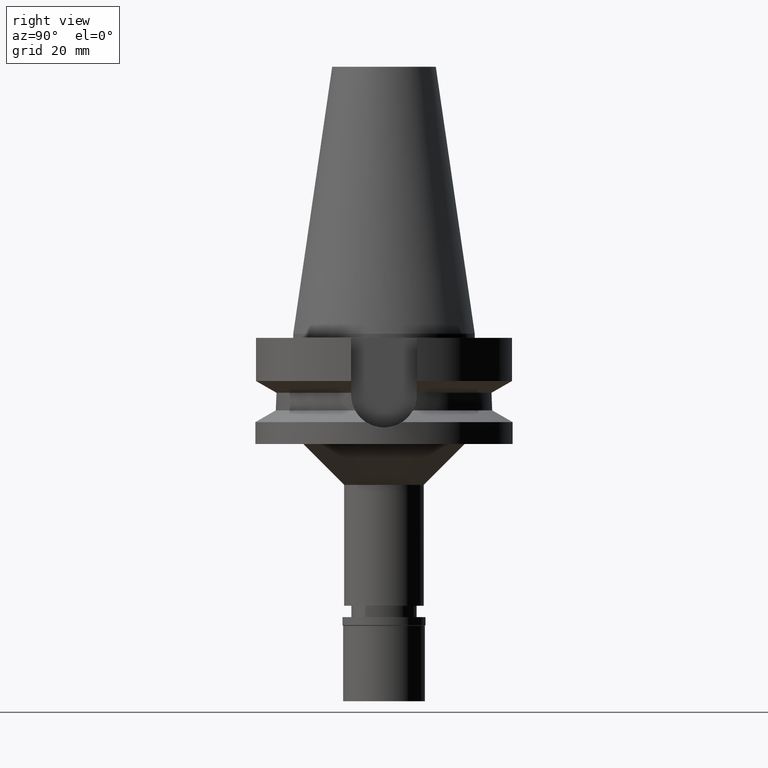
[diagram: clean part render]
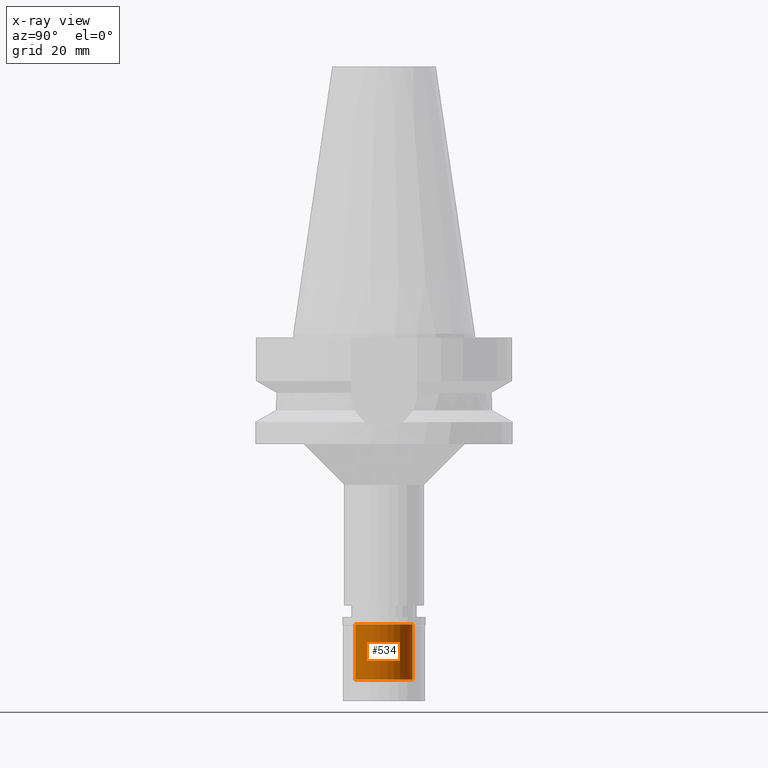
[diagram: x-ray — body ghosted, one internal face saturated and labeled with its STEP entity id]
A machine part, right view, then the same camera in x-ray: the body is ghosted and one INTERNAL B-rep face — a face not visible from any outside direction — is saturated and labeled: STEP entity #534.
In plain terms, the highlighted cylindrical surface (edge-blend (fillet) strip) has radius 7 mm, axis along (0, 0, -1).
Its self-contained STEP definition (entity closure, byte-faithful):
#98 = ORIENTED_EDGE ( 'NONE', *, *, #885, .T. ) ;
#148 = CARTESIAN_POINT ( 'NONE',  ( 0.0000000000000000000, 7.000000000000000000, -15.29999999999999893 ) ) ;
#186 = DIRECTION ( 'NONE',  ( 0.0000000000000000000, 0.0000000000000000000, -1.000000000000000000 ) ) ;
#206 = EDGE_CURVE ( 'NONE', #1701, #1617, #2306, .T. ) ;
#244 = EDGE_LOOP ( 'NONE', ( #2054, #98, #2421, #1112 ) ) ;
#261 = DIRECTION ( 'NONE',  ( 0.0000000000000000000, 0.0000000000000000000, 1.000000000000000000 ) ) ;
#387 = DIRECTION ( 'NONE',  ( 0.0000000000000000000, 0.0000000000000000000, 1.000000000000000000 ) ) ;
#416 = CARTESIAN_POINT ( 'NONE',  ( 0.0000000000000000000, 0.0000000000000000000, -15.29999999999999893 ) ) ;
#460 = DIRECTION ( 'NONE',  ( 0.0000000000000000000, 1.000000000000000000, 0.0000000000000000000 ) ) ;
#534 = ADVANCED_FACE ( 'NONE', ( #2960 ), #780, .F. ) ;
#549 = DIRECTION ( 'NONE',  ( 0.0000000000000000000, 0.0000000000000000000, -1.000000000000000000 ) ) ;
#684 = EDGE_CURVE ( 'NONE', #1057, #1617, #1020, .T. ) ;
#688 = CARTESIAN_POINT ( 'NONE',  ( 0.0000000000000000000, -7.000000000000000000, -1.800000000000000044 ) ) ;
#715 = CIRCLE ( 'NONE', #2434, 7.000000000000000000 ) ;
#780 = CYLINDRICAL_SURFACE ( 'NONE', #1980, 7.000000000000000000 ) ;
#885 = EDGE_CURVE ( 'NONE', #1487, #1057, #2428, .T. ) ;
#934 = CARTESIAN_POINT ( 'NONE',  ( 0.0000000000000000000, 7.000000000000000000, -15.29999999999999893 ) ) ;
#1020 = CIRCLE ( 'NONE', #2027, 7.000000000000000000 ) ;
#1041 = DIRECTION ( 'NONE',  ( 0.0000000000000000000, -1.000000000000000000, 0.0000000000000000000 ) ) ;
#1057 = VERTEX_POINT ( 'NONE', #688 ) ;
#1112 = ORIENTED_EDGE ( 'NONE', *, *, #206, .F. ) ;
#1487 = VERTEX_POINT ( 'NONE', #2091 ) ;
#1596 = CARTESIAN_POINT ( 'NONE',  ( 0.0000000000000000000, 0.0000000000000000000, -1.800000000000000044 ) ) ;
#1617 = VERTEX_POINT ( 'NONE', #2516 ) ;
#1701 = VERTEX_POINT ( 'NONE', #934 ) ;
#1721 = CARTESIAN_POINT ( 'NONE',  ( 0.0000000000000000000, -7.000000000000000000, -15.29999999999999893 ) ) ;
#1752 = EDGE_CURVE ( 'NONE', #1701, #1487, #715, .T. ) ;
#1836 = DIRECTION ( 'NONE',  ( 0.0000000000000000000, 0.0000000000000000000, 1.000000000000000000 ) ) ;
#1848 = DIRECTION ( 'NONE',  ( 0.0000000000000000000, -1.000000000000000000, 0.0000000000000000000 ) ) ;
#1980 = AXIS2_PLACEMENT_3D ( 'NONE', #2717, #549, #1041 ) ;
#2027 = AXIS2_PLACEMENT_3D ( 'NONE', #1596, #387, #1848 ) ;
#2054 = ORIENTED_EDGE ( 'NONE', *, *, #1752, .T. ) ;
#2091 = CARTESIAN_POINT ( 'NONE',  ( 0.0000000000000000000, -7.000000000000000000, -15.29999999999999893 ) ) ;
#2179 = VECTOR ( 'NONE', #261, 1000.000000000000000 ) ;
#2306 = LINE ( 'NONE', #148, #2435 ) ;
#2421 = ORIENTED_EDGE ( 'NONE', *, *, #684, .T. ) ;
#2428 = LINE ( 'NONE', #1721, #2179 ) ;
#2434 = AXIS2_PLACEMENT_3D ( 'NONE', #416, #186, #460 ) ;
#2435 = VECTOR ( 'NONE', #1836, 1000.000000000000000 ) ;
#2516 = CARTESIAN_POINT ( 'NONE',  ( 0.0000000000000000000, 7.000000000000000000, -1.800000000000000044 ) ) ;
#2717 = CARTESIAN_POINT ( 'NONE',  ( 0.0000000000000000000, 0.0000000000000000000, 0.0000000000000000000 ) ) ;
#2960 = FACE_OUTER_BOUND ( 'NONE', #244, .T. ) ;